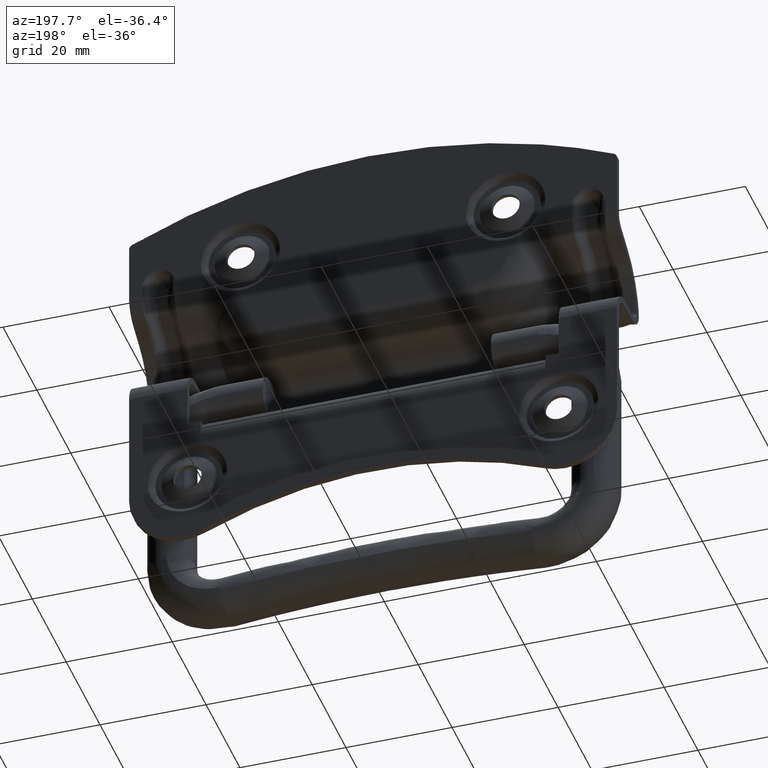
[diagram: clean part render]
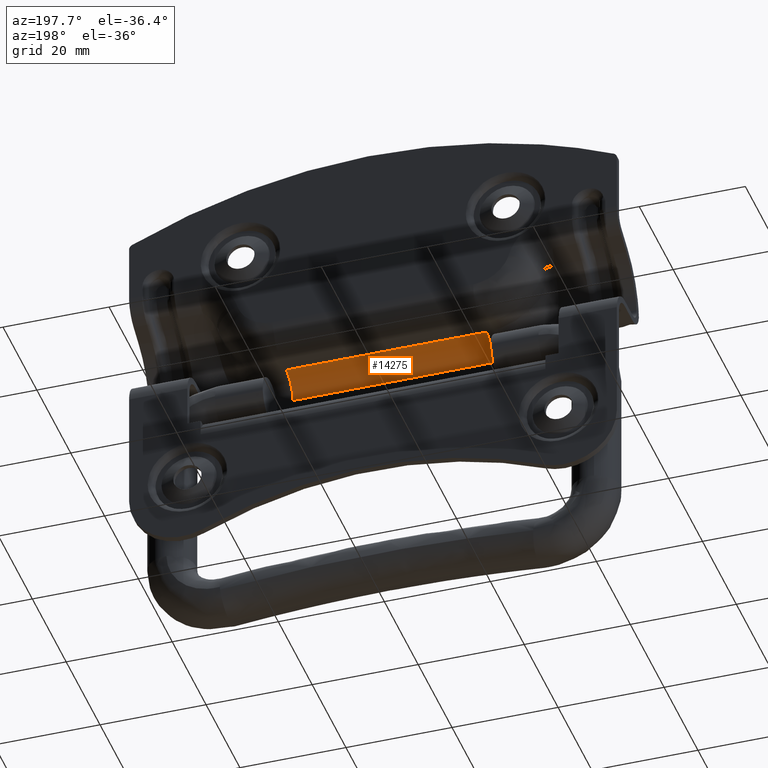
[diagram: same view with one face highlighted and labeled with its STEP entity id]
A machine part, auxiliary view. The second image highlights one B-rep face of the part: STEP entity #14275.
In plain terms, the highlighted face is a freeform B-spline surface patch.
Its self-contained STEP definition (entity closure, byte-faithful):
#14115=CARTESIAN_POINT('',(-18.875717261655250,-1.100000000000100,7.300000000000000));
#14116=VERTEX_POINT('',#14115);
#14117=CARTESIAN_POINT('',(-18.875717261655250,-5.100000000000100,3.300000000000000));
#14118=VERTEX_POINT('',#14117);
#14119=CARTESIAN_POINT('',(-18.875717261655250,-1.100000000000100,7.300000000000000));
#14120=CARTESIAN_POINT('',(-18.875717261655240,-1.459957082780940,7.300063851083768));
#14121=CARTESIAN_POINT('',(-18.875717261655272,-2.245402308885376,7.193443260444902));
#14122=CARTESIAN_POINT('',(-18.875717261655211,-3.209593686810067,6.751787254387463));
#14123=CARTESIAN_POINT('',(-18.875717261655300,-3.946649146956592,6.146646656544230));
#14124=CARTESIAN_POINT('',(-18.875717261655261,-4.447301210070317,5.536608793955272));
#14125=CARTESIAN_POINT('',(-18.875717261655179,-4.943483567528919,4.608638138499666));
#14126=CARTESIAN_POINT('',(-18.875717261655321,-5.100585761899076,3.823707372943107));
#14127=CARTESIAN_POINT('',(-18.875717261655250,-5.100000000000100,3.300000000000000));
#14128=B_SPLINE_CURVE_WITH_KNOTS('',3,(#14119,#14120,#14121,#14122,#14123,#14124,#14125,#14126,#14127),.UNSPECIFIED.,.F.,.U.,(4,1,1,1,1,1,4),(0.000000059109366,1.079930510635020,2.356267237755760,3.141671518223976,3.927070110055137,4.712507251697214,6.283342977338725),.UNSPECIFIED.);
#14129=EDGE_CURVE('',#14116,#14118,#14128,.T.);
#14232=CARTESIAN_POINT('',(-19.819500624673939,-5.098629299902324,3.195292206768502));
#14233=CARTESIAN_POINT('',(19.842995206186611,-5.098629299902324,3.195292206768502));
#14234=CARTESIAN_POINT('',(-19.819500624673939,-5.210914661059517,7.483297150971554));
#14235=CARTESIAN_POINT('',(19.842995206186615,-5.210914661059517,7.483297150971554));
#14236=CARTESIAN_POINT('',(-19.819500624673939,-0.925522450538758,7.296192886327430));
#14237=CARTESIAN_POINT('',(19.842995206186611,-0.925522450538758,7.296192886327430));
#14245=(BOUNDED_SURFACE()B_SPLINE_SURFACE(1,2,((#14232,#14234,#14236),(#14233,#14235,#14237)),.UNSPECIFIED.,.F.,.F.,.U.)B_SPLINE_SURFACE_WITH_KNOTS((2,2),(3,3),(0.0,39.662495830860550),(0.0,6.956997999374935),.UNSPECIFIED.)GEOMETRIC_REPRESENTATION_ITEM()RATIONAL_B_SPLINE_SURFACE(((1.0,0.681998360062498,1.0),(1.0,0.681998360062498,1.0)))REPRESENTATION_ITEM('')SURFACE());
#14246=CARTESIAN_POINT('',(18.875617259092451,-1.100000000000100,7.300000000000000));
#14247=VERTEX_POINT('',#14246);
#14248=CARTESIAN_POINT('',(18.875617259092451,-5.100000000000100,3.300000000000000));
#14249=VERTEX_POINT('',#14248);
#14250=CARTESIAN_POINT('',(18.875617259092451,-1.100000000000100,7.300000000000000));
#14251=CARTESIAN_POINT('',(18.875617259092451,-1.525448951062470,7.300241946880585));
#14252=CARTESIAN_POINT('',(18.875617259092468,-2.245252995546104,7.184016061627710));
#14253=CARTESIAN_POINT('',(18.875617259092451,-3.083386242753018,6.800043908332460));
#14254=CARTESIAN_POINT('',(18.875617259092461,-3.700403106041887,6.365439632017209));
#14255=CARTESIAN_POINT('',(18.875617259092461,-4.305116346337358,5.761019331161559));
#14256=CARTESIAN_POINT('',(18.875617259092429,-4.917382207833143,4.739544856928510));
#14257=CARTESIAN_POINT('',(18.875617259092468,-5.100566294742473,3.823679783028831));
#14258=CARTESIAN_POINT('',(18.875617259092451,-5.100000000000100,3.300000000000000));
#14259=B_SPLINE_CURVE_WITH_KNOTS('',3,(#14250,#14251,#14252,#14253,#14254,#14255,#14256,#14257,#14258),.UNSPECIFIED.,.F.,.U.,(4,1,1,1,1,1,4),(0.000000059108599,1.276292864882233,2.159913770716957,2.748968095427453,3.534369475951356,4.712507251697156,6.283342977338722),.UNSPECIFIED.);
#14260=EDGE_CURVE('',#14247,#14249,#14259,.T.);
#14261=ORIENTED_EDGE('',*,*,#14260,.T.);
#14262=CARTESIAN_POINT('',(-18.875717261655250,-5.100000000000100,3.300000000000000));
#14263=CARTESIAN_POINT('',(18.875617259092451,-5.100000000000100,3.300000000000000));
#14264=QUASI_UNIFORM_CURVE('',1,(#14262,#14263),.UNSPECIFIED.,.F.,.U.);
#14265=EDGE_CURVE('',#14118,#14249,#14264,.T.);
#14266=ORIENTED_EDGE('',*,*,#14265,.F.);
#14267=ORIENTED_EDGE('',*,*,#14129,.F.);
#14268=CARTESIAN_POINT('',(18.875617259092451,-1.100000000000100,7.300000000000000));
#14269=CARTESIAN_POINT('',(-18.875717261655250,-1.100000000000100,7.300000000000000));
#14270=QUASI_UNIFORM_CURVE('',1,(#14268,#14269),.UNSPECIFIED.,.F.,.U.);
#14271=EDGE_CURVE('',#14247,#14116,#14270,.T.);
#14272=ORIENTED_EDGE('',*,*,#14271,.F.);
#14273=EDGE_LOOP('',(#14261,#14266,#14267,#14272));
#14274=FACE_OUTER_BOUND('',#14273,.T.);
#14275=ADVANCED_FACE('',(#14274),#14245,.F.);